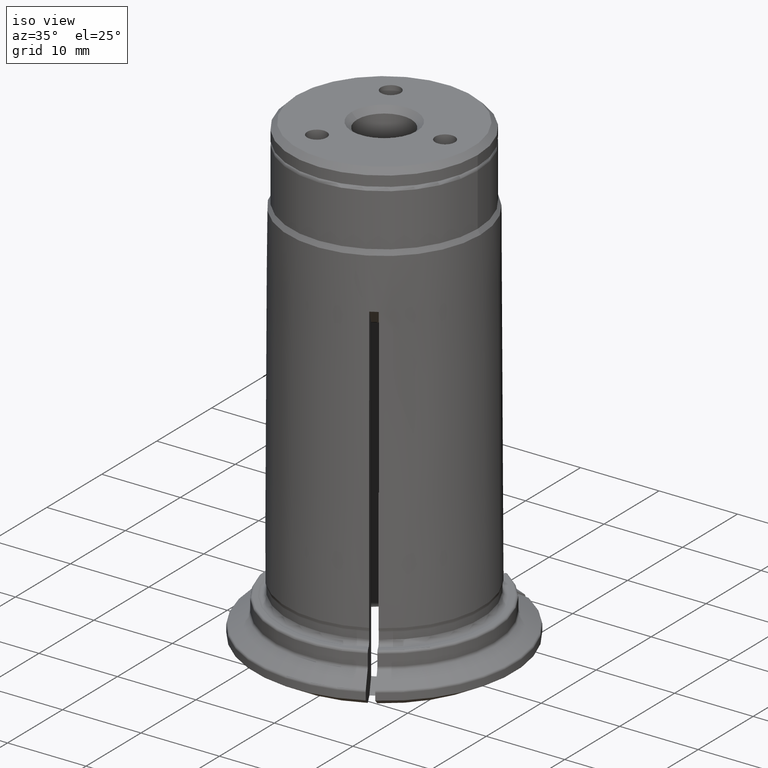
[diagram: clean part render]
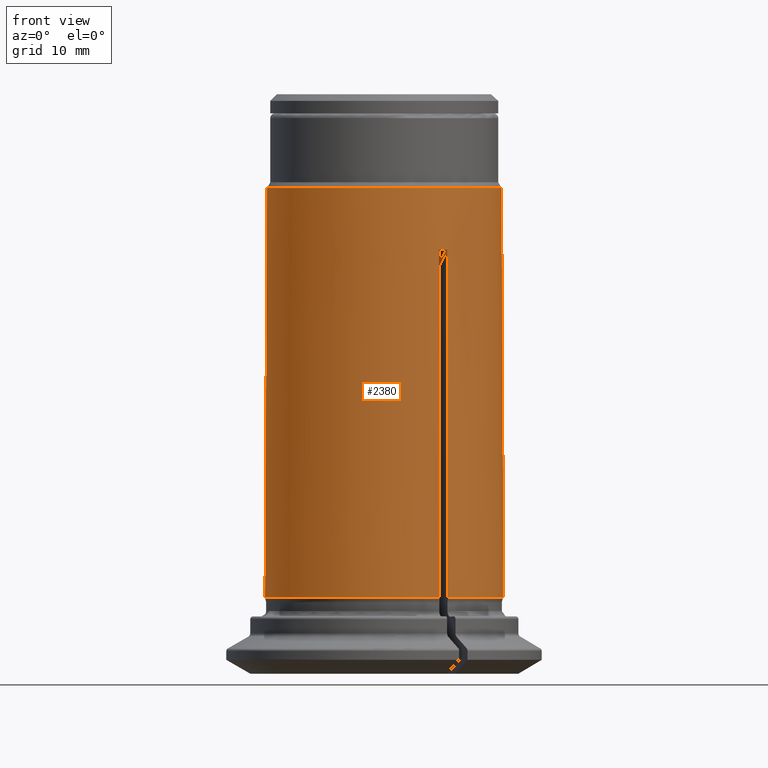
[diagram: tour spotlight — one face highlighted and labeled with its STEP entity id]
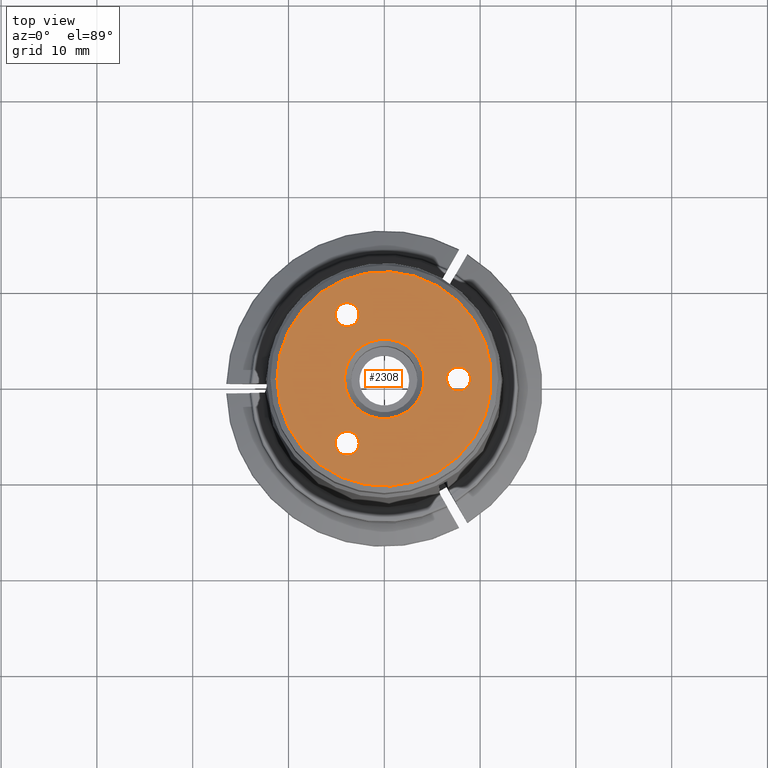
[diagram: tour spotlight — one face highlighted and labeled with its STEP entity id]
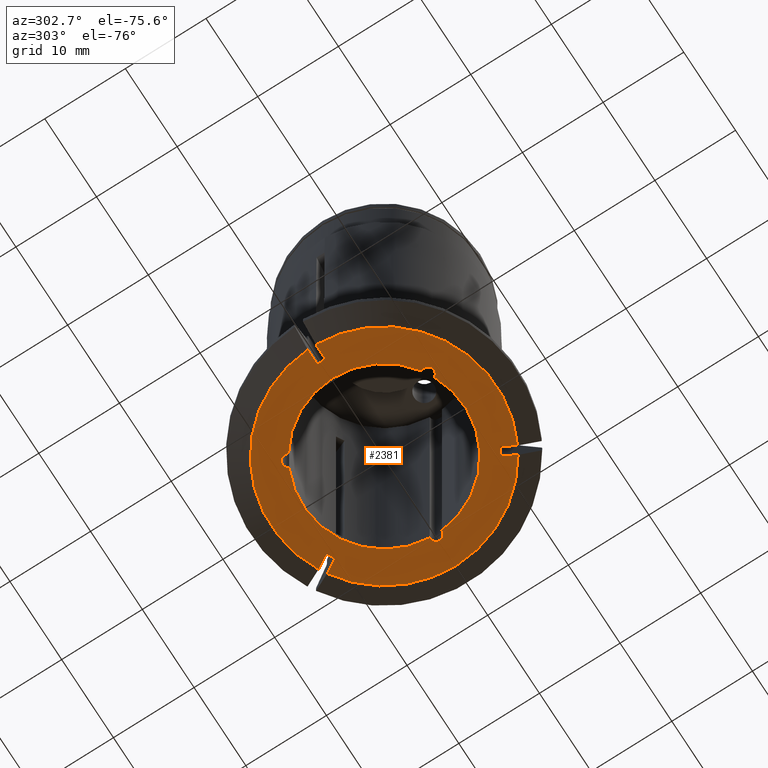
[diagram: tour spotlight — one face highlighted and labeled with its STEP entity id]
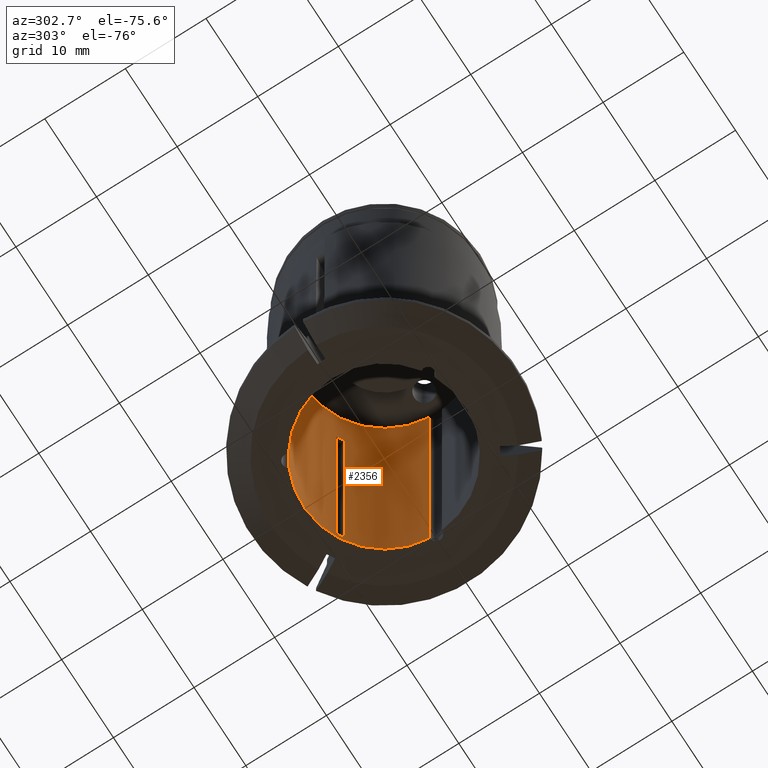
[diagram: tour spotlight — one face highlighted and labeled with its STEP entity id]
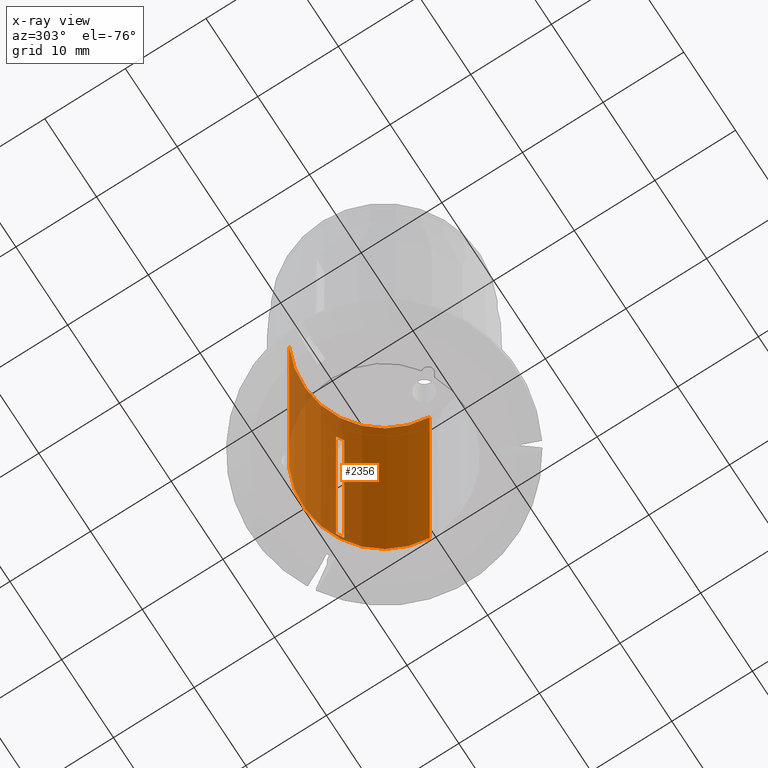
[diagram: x-ray of the same camera — body ghosted, this tour face saturated]
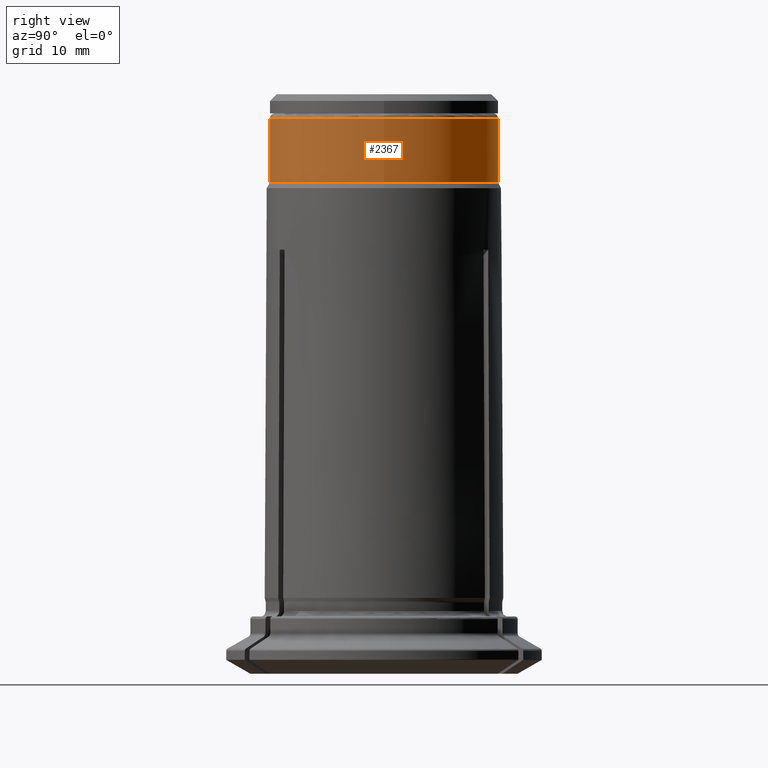
[diagram: tour spotlight — one face highlighted and labeled with its STEP entity id]
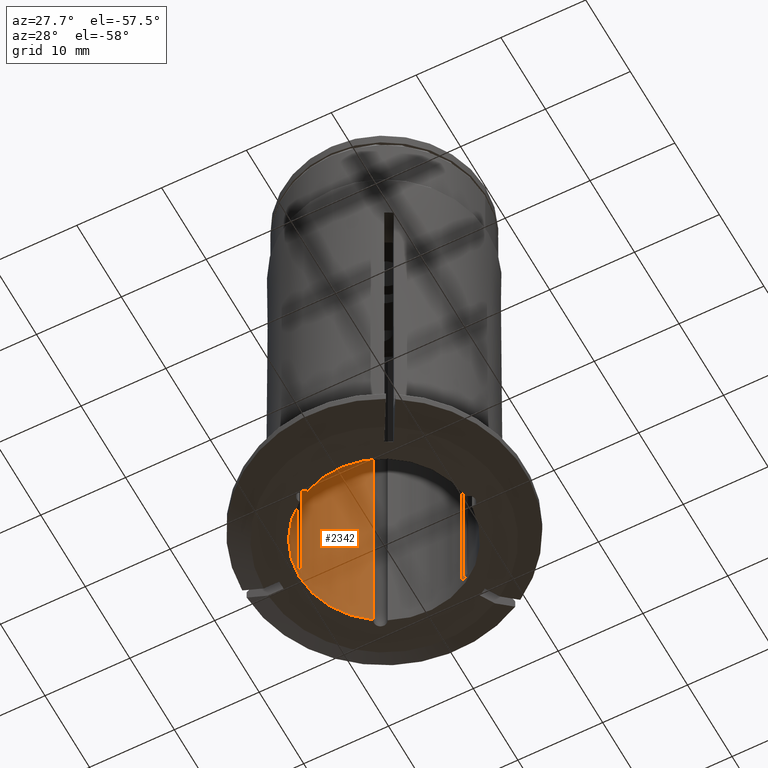
[diagram: tour spotlight — one face highlighted and labeled with its STEP entity id]
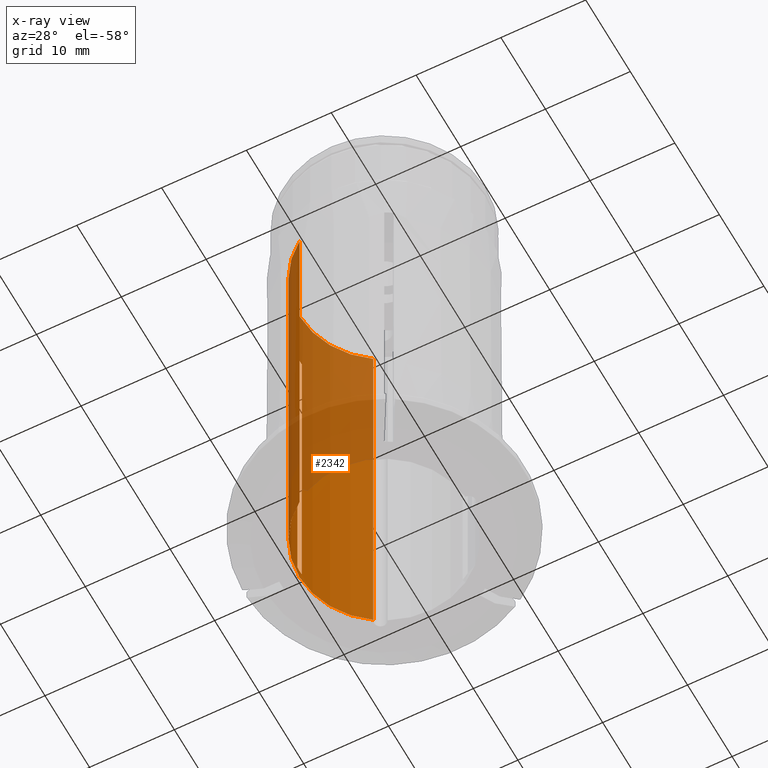
[diagram: x-ray of the same camera — body ghosted, this tour face saturated]
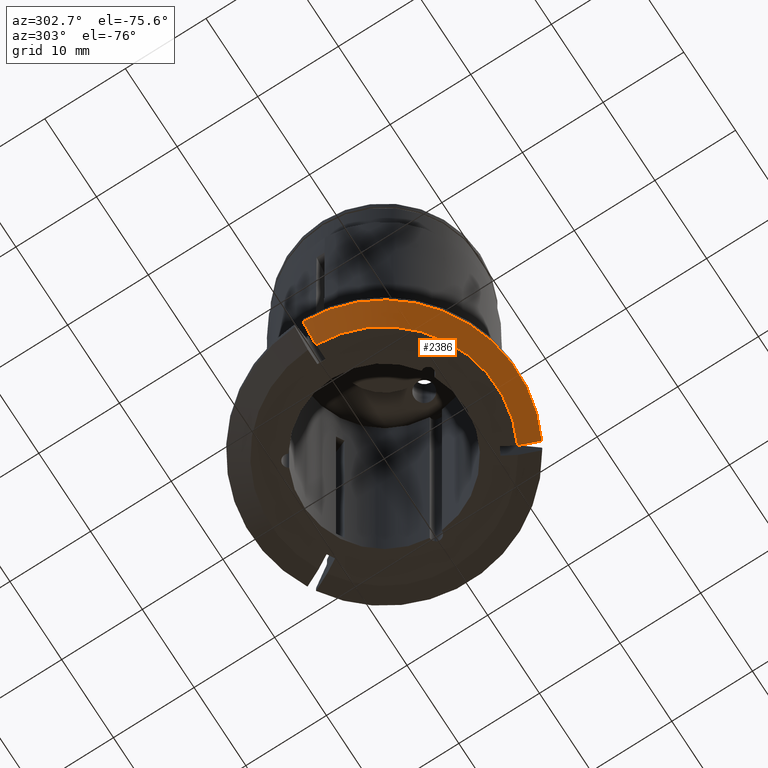
[diagram: tour spotlight — one face highlighted and labeled with its STEP entity id]
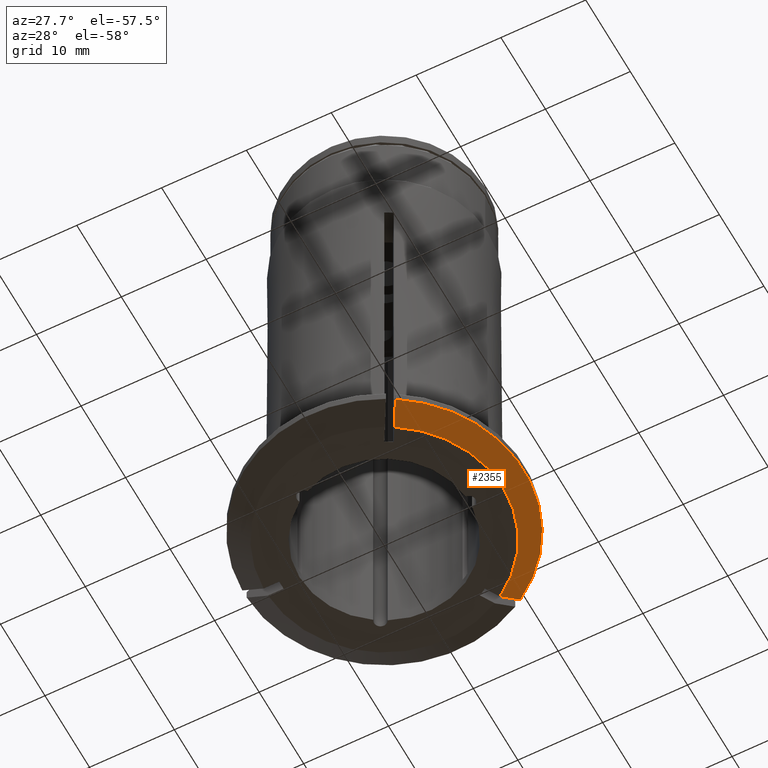
[diagram: tour spotlight — one face highlighted and labeled with its STEP entity id]
A machine part: a face-by-face anatomy tour. The part has 96 B-rep faces; the first image is the clean iso view, then the 8 largest visible faces are spotlighted one at a time (largest first), each with its STEP entity span.

Face 1 — front view, entity #2380. In plain terms, the highlighted conical surface has half-angle 0.287 deg.
Definition (entity closure, byte-faithful):
#21=ELLIPSE('',#2474,17.4532343795865,12.3411460909249);
#27=ELLIPSE('',#2590,17.4532343795865,12.3411460909249);
#28=ELLIPSE('',#2599,17.4532343795865,12.3411460909249);
#35=LINE('',#3316,#110);
#54=LINE('',#3426,#129);
#88=LINE('',#3727,#163);
#93=LINE('',#3763,#168);
#94=LINE('',#3767,#169);
#95=LINE('',#3770,#170);
#110=VECTOR('',#2767,1000.);
#129=VECTOR('',#2810,1000.);
#163=VECTOR('',#3060,1000.);
#168=VECTOR('',#3085,1000.);
#169=VECTOR('',#3088,1000.);
#170=VECTOR('',#3091,1000.);
#251=CONICAL_SURFACE('',#2597,12.4613719976876,0.00500036830696413);
#302=CIRCLE('',#2482,12.4613719976876);
#318=CIRCLE('',#2512,12.4613719976876);
#355=CIRCLE('',#2578,12.2474729635871);
#362=CIRCLE('',#2598,12.4613719976876);
#749=ORIENTED_EDGE('',*,*,#917,.F.);
#750=ORIENTED_EDGE('',*,*,#937,.T.);
#751=ORIENTED_EDGE('',*,*,#1082,.T.);
#752=ORIENTED_EDGE('',*,*,#1083,.T.);
#753=ORIENTED_EDGE('',*,*,#1084,.F.);
#754=ORIENTED_EDGE('',*,*,#1085,.T.);
#755=ORIENTED_EDGE('',*,*,#1069,.T.);
#756=ORIENTED_EDGE('',*,*,#980,.T.);
#757=ORIENTED_EDGE('',*,*,#1086,.F.);
#758=ORIENTED_EDGE('',*,*,#1074,.T.);
#759=ORIENTED_EDGE('',*,*,#955,.T.);
#760=ORIENTED_EDGE('',*,*,#960,.T.);
#761=ORIENTED_EDGE('',*,*,#1063,.F.);
#917=EDGE_CURVE('',#1150,#1151,#35,.T.);
#937=EDGE_CURVE('',#1150,#1169,#21,.T.);
#955=EDGE_CURVE('',#1187,#1186,#54,.T.);
#960=EDGE_CURVE('',#1186,#1151,#302,.T.);
#980=EDGE_CURVE('',#1197,#1196,#318,.T.);
#1063=EDGE_CURVE('',#1261,#1261,#355,.T.);
#1069=EDGE_CURVE('',#1263,#1197,#88,.T.);
#1074=EDGE_CURVE('',#1265,#1187,#27,.T.);
#1082=EDGE_CURVE('',#1169,#1268,#93,.T.);
#1083=EDGE_CURVE('',#1268,#1269,#362,.T.);
#1084=EDGE_CURVE('',#1270,#1269,#94,.T.);
#1085=EDGE_CURVE('',#1270,#1263,#28,.T.);
#1086=EDGE_CURVE('',#1265,#1196,#95,.T.);
#1150=VERTEX_POINT('',#3317);
#1151=VERTEX_POINT('',#3318);
#1169=VERTEX_POINT('',#3369);
#1186=VERTEX_POINT('',#3425);
#1187=VERTEX_POINT('',#3427);
#1196=VERTEX_POINT('',#3475);
#1197=VERTEX_POINT('',#3477);
#1261=VERTEX_POINT('',#3714);
#1263=VERTEX_POINT('',#3728);
#1265=VERTEX_POINT('',#3736);
#1268=VERTEX_POINT('',#3764);
#1269=VERTEX_POINT('',#3766);
#1270=VERTEX_POINT('',#3768);
#1448=EDGE_LOOP('',(#749,#750,#751,#752,#753,#754,#755,#756,#757,#758,#759,
#760));
#1449=EDGE_LOOP('',(#761));
#1586=FACE_BOUND('',#1448,.T.);
#1587=FACE_BOUND('',#1449,.T.);
#2380=ADVANCED_FACE('',(#1586,#1587),#251,.T.);
#2474=AXIS2_PLACEMENT_3D('',#3370,#2790,#2791);
#2482=AXIS2_PLACEMENT_3D('',#3435,#2818,#2819);
#2512=AXIS2_PLACEMENT_3D('',#3476,#2882,#2883);
#2578=AXIS2_PLACEMENT_3D('',#3713,#3038,#3039);
#2590=AXIS2_PLACEMENT_3D('',#3737,#3069,#3070);
#2597=AXIS2_PLACEMENT_3D('',#3762,#3083,#3084);
#2598=AXIS2_PLACEMENT_3D('',#3765,#3086,#3087);
#2599=AXIS2_PLACEMENT_3D('',#3769,#3089,#3090);
#2767=DIRECTION('',(-0.00500443706530629,0.,-0.999987477726426));
#2790=DIRECTION('',(0.707106781186548,-3.92523114670944E-16,0.707106781186548));
#2791=DIRECTION('',(0.707106781186548,-3.92523114670943E-16,-0.707106781186548));
#2810=DIRECTION('',(0.00250221853265369,0.00433396963019447,-0.999987477726426));
#2818=DIRECTION('',(0.,0.,1.));
#2819=DIRECTION('',(1.,0.,0.));
#2882=DIRECTION('',(0.,0.,1.));
#2883=DIRECTION('',(1.,0.,0.));
#3038=DIRECTION('',(0.,0.,1.));
#3039=DIRECTION('',(1.,0.,0.));
#3060=DIRECTION('',(0.00250221853265369,-0.00433396963019447,-0.999987477726426));
#3069=DIRECTION('',(-0.353553390593274,-0.612372435695795,0.707106781186547));
#3070=DIRECTION('',(-0.353553390593274,-0.612372435695795,-0.707106781186548));
#3083=DIRECTION('',(0.,0.,-1.));
#3084=DIRECTION('',(-1.,0.,0.));
#3085=DIRECTION('',(-0.00500443706530905,0.,-0.999987477726426));
#3086=DIRECTION('',(0.,0.,1.));
#3087=DIRECTION('',(1.,0.,0.));
#3088=DIRECTION('',(0.00250221853265369,-0.00433396963019447,-0.999987477726426));
#3089=DIRECTION('',(-0.353553390593274,0.612372435695795,0.707106781186548));
#3090=DIRECTION('',(-0.353553390593274,0.612372435695795,-0.707106781186548));
#3091=DIRECTION('',(0.00250221853265369,0.00433396963019447,-0.999987477726426));
#3316=CARTESIAN_POINT('',(-12.3603963876207,0.500000000000017,26.0976951692608));
#3317=CARTESIAN_POINT('',(-12.269455816314,0.500000000000016,44.269455816314));
#3318=CARTESIAN_POINT('',(-12.4513369589274,0.500000000000017,7.92593452220755));
#3369=CARTESIAN_POINT('',(-12.269455816314,-0.499999999999984,44.269455816314));
#3370=CARTESIAN_POINT('',(0.061711561643734,-3.42567983112237E-17,31.9382884383563));
#3425=CARTESIAN_POINT('',(5.79265577757151,11.0331741175112,7.92593452220755));
#3426=CARTESIAN_POINT('',(5.74718549191815,10.9544172725249,26.0976951692608));
#3427=CARTESIAN_POINT('',(5.70171520626479,10.8756604275387,44.269455816314));
#3435=CARTESIAN_POINT('',(0.,0.,7.92593452220755));
#3475=CARTESIAN_POINT('',(6.65868118135595,10.5331741175112,7.92593452220755));
#3476=CARTESIAN_POINT('',(0.,0.,7.92593452220755));
#3477=CARTESIAN_POINT('',(6.65868118135594,-10.5331741175112,7.92593452220755));
#3713=CARTESIAN_POINT('',(0.,0.,50.7022338290108));
#3714=CARTESIAN_POINT('',(12.2474729635871,0.,50.7022338290108));
#3727=CARTESIAN_POINT('',(6.61321089570258,-10.4544172725249,26.0976951692608));
#3728=CARTESIAN_POINT('',(6.56774061004921,-10.3756604275386,44.269455816314));
#3736=CARTESIAN_POINT('',(6.56774061004923,10.3756604275386,44.269455816314));
#3737=CARTESIAN_POINT('',(-0.0308557808218644,-0.0534437800906781,31.9382884383562));
#3762=CARTESIAN_POINT('',(0.,0.,7.92593452220755));
#3763=CARTESIAN_POINT('',(-12.3603963876208,-0.499999999999983,26.0976951692608));
#3764=CARTESIAN_POINT('',(-12.4513369589274,-0.499999999999983,7.92593452220755));
#3765=CARTESIAN_POINT('',(0.,0.,7.92593452220755));
#3766=CARTESIAN_POINT('',(5.7926557775715,-11.0331741175112,7.92593452220755));
#3767=CARTESIAN_POINT('',(5.74718549191814,-10.9544172725249,26.0976951692608));
#3768=CARTESIAN_POINT('',(5.70171520626478,-10.8756604275387,44.269455816314));
#3769=CARTESIAN_POINT('',(-0.030855780821867,0.0534437800906833,31.9382884383562));
#3770=CARTESIAN_POINT('',(6.61321089570259,10.4544172725249,26.0976951692608));

Face 2 — top view, entity #2308. In plain terms, the highlighted planar face has unit normal (0, 0, -1).
Definition (entity closure, byte-faithful):
#180=PLANE('',#2439);
#271=CIRCLE('',#2417,4.1585);
#275=CIRCLE('',#2423,1.25);
#277=CIRCLE('',#2426,1.25);
#279=CIRCLE('',#2429,1.25);
#281=CIRCLE('',#2433,11.2);
#416=ORIENTED_EDGE('',*,*,#897,.F.);
#417=ORIENTED_EDGE('',*,*,#895,.T.);
#418=ORIENTED_EDGE('',*,*,#893,.T.);
#419=ORIENTED_EDGE('',*,*,#891,.T.);
#420=ORIENTED_EDGE('',*,*,#887,.T.);
#887=EDGE_CURVE('',#1132,#1132,#271,.T.);
#891=EDGE_CURVE('',#1136,#1136,#275,.T.);
#893=EDGE_CURVE('',#1138,#1138,#277,.T.);
#895=EDGE_CURVE('',#1140,#1140,#279,.T.);
#897=EDGE_CURVE('',#1142,#1142,#281,.T.);
#1132=VERTEX_POINT('',#3242);
#1136=VERTEX_POINT('',#3252);
#1138=VERTEX_POINT('',#3257);
#1140=VERTEX_POINT('',#3262);
#1142=VERTEX_POINT('',#3268);
#1352=EDGE_LOOP('',(#416));
#1353=EDGE_LOOP('',(#417));
#1354=EDGE_LOOP('',(#418));
#1355=EDGE_LOOP('',(#419));
#1356=EDGE_LOOP('',(#420));
#1490=FACE_BOUND('',#1352,.T.);
#1491=FACE_BOUND('',#1353,.T.);
#1492=FACE_BOUND('',#1354,.T.);
#1493=FACE_BOUND('',#1355,.T.);
#1494=FACE_BOUND('',#1356,.T.);
#2308=ADVANCED_FACE('',(#1490,#1491,#1492,#1493,#1494),#180,.F.);
#2417=AXIS2_PLACEMENT_3D('',#3241,#2659,#2660);
#2423=AXIS2_PLACEMENT_3D('',#3251,#2671,#2672);
#2426=AXIS2_PLACEMENT_3D('',#3256,#2677,#2678);
#2429=AXIS2_PLACEMENT_3D('',#3261,#2683,#2684);
#2433=AXIS2_PLACEMENT_3D('',#3267,#2691,#2692);
#2439=AXIS2_PLACEMENT_3D('',#3276,#2703,#2704);
#2659=DIRECTION('',(0.,0.,-1.));
#2660=DIRECTION('',(-1.,0.,0.));
#2671=DIRECTION('',(0.,0.,-1.));
#2672=DIRECTION('',(1.,0.,0.));
#2677=DIRECTION('',(0.,0.,-1.));
#2678=DIRECTION('',(1.,0.,0.));
#2683=DIRECTION('',(0.,0.,-1.));
#2684=DIRECTION('',(1.,0.,0.));
#2691=DIRECTION('',(0.,0.,-1.));
#2692=DIRECTION('',(-1.,0.,0.));
#2703=DIRECTION('',(0.,0.,-1.));
#2704=DIRECTION('',(-1.,0.,0.));
#3241=CARTESIAN_POINT('',(0.,0.,60.5));
#3242=CARTESIAN_POINT('',(-4.1585,0.,60.5));
#3251=CARTESIAN_POINT('',(-3.875,-6.71169687932939,60.5));
#3252=CARTESIAN_POINT('',(-2.625,-6.71169687932939,60.5));
#3256=CARTESIAN_POINT('',(-3.875,6.7116968793294,60.5));
#3257=CARTESIAN_POINT('',(-2.625,6.7116968793294,60.5));
#3261=CARTESIAN_POINT('',(7.75,0.,60.5));
#3262=CARTESIAN_POINT('',(9.,0.,60.5));
#3267=CARTESIAN_POINT('',(0.,0.,60.5));
#3268=CARTESIAN_POINT('',(-11.2,0.,60.5));
#3276=CARTESIAN_POINT('',(11.9,0.,60.5));

Face 3 — auxiliary view, entity #2381. In plain terms, the highlighted planar face has unit normal (0, 0, -1).
Definition (entity closure, byte-faithful):
#41=LINE('',#3358,#116);
#46=LINE('',#3372,#121);
#48=LINE('',#3378,#123);
#87=LINE('',#3726,#162);
#90=LINE('',#3731,#165);
#96=LINE('',#3772,#171);
#97=LINE('',#3773,#172);
#98=LINE('',#3775,#173);
#99=LINE('',#3779,#174);
#116=VECTOR('',#2781,1000.);
#121=VECTOR('',#2794,1000.);
#123=VECTOR('',#2800,1000.);
#162=VECTOR('',#3059,1000.);
#165=VECTOR('',#3064,1000.);
#171=VECTOR('',#3094,1000.);
#172=VECTOR('',#3095,1000.);
#173=VECTOR('',#3096,1000.);
#174=VECTOR('',#3099,1000.);
#196=PLANE('',#2600);
#314=CIRCLE('',#2506,13.9770526580503);
#315=CIRCLE('',#2508,10.);
#334=CIRCLE('',#2540,13.9770526580503);
#335=CIRCLE('',#2544,10.);
#338=CIRCLE('',#2550,10.);
#356=CIRCLE('',#2582,0.75);
#357=CIRCLE('',#2584,0.75);
#358=CIRCLE('',#2586,0.75);
#363=CIRCLE('',#2601,13.9770526580503);
#762=ORIENTED_EDGE('',*,*,#938,.F.);
#763=ORIENTED_EDGE('',*,*,#931,.T.);
#764=ORIENTED_EDGE('',*,*,#972,.F.);
#765=ORIENTED_EDGE('',*,*,#941,.F.);
#766=ORIENTED_EDGE('',*,*,#1071,.F.);
#767=ORIENTED_EDGE('',*,*,#1087,.T.);
#768=ORIENTED_EDGE('',*,*,#1017,.F.);
#769=ORIENTED_EDGE('',*,*,#1068,.F.);
#770=ORIENTED_EDGE('',*,*,#1088,.F.);
#771=ORIENTED_EDGE('',*,*,#1089,.T.);
#772=ORIENTED_EDGE('',*,*,#1090,.F.);
#773=ORIENTED_EDGE('',*,*,#1091,.F.);
#774=ORIENTED_EDGE('',*,*,#975,.T.);
#775=ORIENTED_EDGE('',*,*,#1066,.T.);
#776=ORIENTED_EDGE('',*,*,#1032,.T.);
#777=ORIENTED_EDGE('',*,*,#1064,.T.);
#778=ORIENTED_EDGE('',*,*,#1022,.T.);
#779=ORIENTED_EDGE('',*,*,#1065,.T.);
#931=EDGE_CURVE('',#1165,#1164,#41,.T.);
#938=EDGE_CURVE('',#1165,#1170,#46,.T.);
#941=EDGE_CURVE('',#1172,#1173,#48,.T.);
#972=EDGE_CURVE('',#1173,#1164,#314,.T.);
#975=EDGE_CURVE('',#1192,#1191,#315,.T.);
#1017=EDGE_CURVE('',#1221,#1220,#334,.T.);
#1022=EDGE_CURVE('',#1226,#1225,#335,.T.);
#1032=EDGE_CURVE('',#1233,#1235,#338,.T.);
#1064=EDGE_CURVE('',#1235,#1226,#356,.T.);
#1065=EDGE_CURVE('',#1225,#1192,#357,.T.);
#1066=EDGE_CURVE('',#1191,#1233,#358,.T.);
#1068=EDGE_CURVE('',#1262,#1221,#87,.T.);
#1071=EDGE_CURVE('',#1264,#1172,#90,.T.);
#1087=EDGE_CURVE('',#1264,#1220,#96,.T.);
#1088=EDGE_CURVE('',#1271,#1262,#97,.T.);
#1089=EDGE_CURVE('',#1271,#1272,#98,.T.);
#1090=EDGE_CURVE('',#1273,#1272,#363,.T.);
#1091=EDGE_CURVE('',#1170,#1273,#99,.T.);
#1164=VERTEX_POINT('',#3357);
#1165=VERTEX_POINT('',#3359);
#1170=VERTEX_POINT('',#3373);
#1172=VERTEX_POINT('',#3379);
#1173=VERTEX_POINT('',#3380);
#1191=VERTEX_POINT('',#3464);
#1192=VERTEX_POINT('',#3466);
#1220=VERTEX_POINT('',#3585);
#1221=VERTEX_POINT('',#3587);
#1225=VERTEX_POINT('',#3597);
#1226=VERTEX_POINT('',#3599);
#1233=VERTEX_POINT('',#3614);
#1235=VERTEX_POINT('',#3618);
#1262=VERTEX_POINT('',#3725);
#1264=VERTEX_POINT('',#3732);
#1271=VERTEX_POINT('',#3774);
#1272=VERTEX_POINT('',#3776);
#1273=VERTEX_POINT('',#3778);
#1450=EDGE_LOOP('',(#762,#763,#764,#765,#766,#767,#768,#769,#770,#771,#772,
#773));
#1451=EDGE_LOOP('',(#774,#775,#776,#777,#778,#779));
#1588=FACE_BOUND('',#1450,.T.);
#1589=FACE_BOUND('',#1451,.T.);
#2381=ADVANCED_FACE('',(#1588,#1589),#196,.T.);
#2506=AXIS2_PLACEMENT_3D('',#3459,#2866,#2867);
#2508=AXIS2_PLACEMENT_3D('',#3465,#2872,#2873);
#2540=AXIS2_PLACEMENT_3D('',#3588,#2947,#2948);
#2544=AXIS2_PLACEMENT_3D('',#3598,#2957,#2958);
#2550=AXIS2_PLACEMENT_3D('',#3619,#2974,#2975);
#2582=AXIS2_PLACEMENT_3D('',#3718,#3046,#3047);
#2584=AXIS2_PLACEMENT_3D('',#3720,#3050,#3051);
#2586=AXIS2_PLACEMENT_3D('',#3722,#3054,#3055);
#2600=AXIS2_PLACEMENT_3D('',#3771,#3092,#3093);
#2601=AXIS2_PLACEMENT_3D('',#3777,#3097,#3098);
#2781=DIRECTION('',(-1.,5.55111512312578E-16,0.));
#2794=DIRECTION('',(-5.55111512312578E-16,-1.,0.));
#2800=DIRECTION('',(0.5,0.866025403784439,0.));
#2866=DIRECTION('',(0.,0.,1.));
#2867=DIRECTION('',(1.,0.,0.));
#2872=DIRECTION('',(0.,0.,1.));
#2873=DIRECTION('',(-1.,0.,0.));
#2947=DIRECTION('',(0.,0.,1.));
#2948=DIRECTION('',(1.,0.,0.));
#2957=DIRECTION('',(0.,0.,1.));
#2958=DIRECTION('',(-1.,0.,0.));
#2974=DIRECTION('',(0.,0.,1.));
#2975=DIRECTION('',(-1.,0.,0.));
#3046=DIRECTION('',(0.,0.,1.));
#3047=DIRECTION('',(0.,1.,0.));
#3050=DIRECTION('',(0.,0.,1.));
#3051=DIRECTION('',(-0.866025403784439,-0.5,0.));
#3054=DIRECTION('',(0.,0.,1.));
#3055=DIRECTION('',(0.866025403784438,-0.5,0.));
#3059=DIRECTION('',(0.5,-0.866025403784439,0.));
#3064=DIRECTION('',(-0.866025403784439,0.5,0.));
#3092=DIRECTION('',(0.,0.,-1.));
#3093=DIRECTION('',(-1.,0.,0.));
#3094=DIRECTION('',(0.5,0.866025403784439,0.));
#3095=DIRECTION('',(0.866025403784439,0.5,0.));
#3096=DIRECTION('',(0.5,-0.866025403784439,0.));
#3097=DIRECTION('',(0.,0.,1.));
#3098=DIRECTION('',(1.,0.,0.));
#3099=DIRECTION('',(-1.,5.55111512312578E-16,0.));
#3357=CARTESIAN_POINT('',(-13.9681065648108,0.500000000000018,-2.73567093223561E-18));
#3358=CARTESIAN_POINT('',(14.1502577388071,0.5,0.));
#3359=CARTESIAN_POINT('',(-12.1243556529821,0.500000000000017,-1.0842021724855E-15));
#3372=CARTESIAN_POINT('',(-12.1243556529821,1.45853403753445E-14,0.));
#3373=CARTESIAN_POINT('',(-12.1243556529821,-0.499999999999984,-1.0842021724855E-15));
#3378=CARTESIAN_POINT('',(3.10455173280958,6.37724133595217,0.));
#3379=CARTESIAN_POINT('',(5.62916512459888,10.75,-6.72205346941013E-15));
#3380=CARTESIAN_POINT('',(6.55104058051318,12.3467351278943,1.9360177971773E-15));
#3459=CARTESIAN_POINT('',(0.,0.,0.));
#3464=CARTESIAN_POINT('',(-5.63499969908516,-8.26116083800033,0.));
#3465=CARTESIAN_POINT('',(-3.03576608295941E-15,0.,0.));
#3466=CARTESIAN_POINT('',(-5.63499969908515,8.26116083800033,0.));
#3585=CARTESIAN_POINT('',(7.41706598429762,11.8467351278943,1.9360177971773E-15));
#3587=CARTESIAN_POINT('',(7.41706598429761,-11.8467351278943,-2.03650724240079E-16));
#3588=CARTESIAN_POINT('',(0.,0.,0.));
#3597=CARTESIAN_POINT('',(-4.33687530091485,9.01063330872557,0.));
#3598=CARTESIAN_POINT('',(-3.03576608295941E-15,0.,0.));
#3599=CARTESIAN_POINT('',(9.971875,0.749472470725243,0.));
#3614=CARTESIAN_POINT('',(-4.33687530091486,-9.01063330872557,0.));
#3618=CARTESIAN_POINT('',(9.971875,-0.749472470725243,0.));
#3619=CARTESIAN_POINT('',(-3.03576608295941E-15,0.,0.));
#3718=CARTESIAN_POINT('',(10.,0.,0.));
#3720=CARTESIAN_POINT('',(-5.,8.66025403784439,0.));
#3722=CARTESIAN_POINT('',(-5.,-8.66025403784438,0.));
#3725=CARTESIAN_POINT('',(6.49519052838329,-10.25,6.50521303491303E-16));
#3726=CARTESIAN_POINT('',(3.97057713659401,-5.87724133595217,0.));
#3731=CARTESIAN_POINT('',(16.6748711305965,4.37275866404783,0.));
#3732=CARTESIAN_POINT('',(6.49519052838331,10.25,-3.25260651745651E-15));
#3771=CARTESIAN_POINT('',(14.1502577388071,0.,0.));
#3772=CARTESIAN_POINT('',(3.97057713659402,5.87724133595217,0.));
#3773=CARTESIAN_POINT('',(16.6748711305965,-4.37275866404782,0.));
#3774=CARTESIAN_POINT('',(5.62916512459885,-10.75,6.50521303491303E-16));
#3775=CARTESIAN_POINT('',(3.10455173280957,-6.37724133595217,0.));
#3776=CARTESIAN_POINT('',(6.55104058051317,-12.3467351278943,5.20867276189869E-16));
#3777=CARTESIAN_POINT('',(0.,0.,0.));
#3778=CARTESIAN_POINT('',(-13.9681065648108,-0.499999999999983,0.));
#3779=CARTESIAN_POINT('',(14.1502577388071,-0.5,0.));

Face 4 — auxiliary view, entity #2356. An x-ray twin of the same camera follows (body ghosted, this face saturated) — the face is partly hidden behind the body. In plain terms, the highlighted cylindrical surface (partial cylindrical patch) has radius 10 mm, axis along (0, 0, -1).
Definition (entity closure, byte-faithful):
#23=ELLIPSE('',#2542,11.5470053837925,10.);
#24=ELLIPSE('',#2543,14.1421356237309,10.);
#56=LINE('',#3430,#131);
#71=LINE('',#3590,#146);
#72=LINE('',#3595,#147);
#73=LINE('',#3600,#148);
#131=VECTOR('',#2812,1000.);
#146=VECTOR('',#2951,1000.);
#147=VECTOR('',#2956,1000.);
#148=VECTOR('',#2959,1000.);
#227=CYLINDRICAL_SURFACE('',#2541,10.);
#335=CIRCLE('',#2544,10.);
#336=CIRCLE('',#2545,10.);
#630=ORIENTED_EDGE('',*,*,#1018,.F.);
#631=ORIENTED_EDGE('',*,*,#1019,.F.);
#632=ORIENTED_EDGE('',*,*,#957,.T.);
#633=ORIENTED_EDGE('',*,*,#1020,.F.);
#634=ORIENTED_EDGE('',*,*,#1021,.T.);
#635=ORIENTED_EDGE('',*,*,#1022,.F.);
#636=ORIENTED_EDGE('',*,*,#1023,.F.);
#637=ORIENTED_EDGE('',*,*,#1024,.T.);
#957=EDGE_CURVE('',#1189,#1188,#56,.T.);
#1018=EDGE_CURVE('',#1222,#1223,#71,.T.);
#1019=EDGE_CURVE('',#1189,#1222,#23,.T.);
#1020=EDGE_CURVE('',#1223,#1188,#24,.T.);
#1021=EDGE_CURVE('',#1224,#1225,#72,.T.);
#1022=EDGE_CURVE('',#1226,#1225,#335,.T.);
#1023=EDGE_CURVE('',#1227,#1226,#73,.T.);
#1024=EDGE_CURVE('',#1227,#1224,#336,.T.);
#1188=VERTEX_POINT('',#3429);
#1189=VERTEX_POINT('',#3431);
#1222=VERTEX_POINT('',#3591);
#1223=VERTEX_POINT('',#3592);
#1224=VERTEX_POINT('',#3596);
#1225=VERTEX_POINT('',#3597);
#1226=VERTEX_POINT('',#3599);
#1227=VERTEX_POINT('',#3601);
#1415=EDGE_LOOP('',(#630,#631,#632,#633));
#1416=EDGE_LOOP('',(#634,#635,#636,#637));
#1553=FACE_BOUND('',#1415,.T.);
#1554=FACE_BOUND('',#1416,.T.);
#2356=ADVANCED_FACE('',(#1553,#1554),#227,.F.);
#2541=AXIS2_PLACEMENT_3D('',#3589,#2949,#2950);
#2542=AXIS2_PLACEMENT_3D('',#3593,#2952,#2953);
#2543=AXIS2_PLACEMENT_3D('',#3594,#2954,#2955);
#2544=AXIS2_PLACEMENT_3D('',#3598,#2957,#2958);
#2545=AXIS2_PLACEMENT_3D('',#3602,#2960,#2961);
#2812=DIRECTION('',(0.,0.,1.));
#2949=DIRECTION('',(0.,0.,-1.));
#2950=DIRECTION('',(-1.,0.,0.));
#2951=DIRECTION('',(0.,0.,1.));
#2952=DIRECTION('',(-0.25,-0.433012701892219,-0.866025403784439));
#2953=DIRECTION('',(-0.433012701892219,-0.75,0.5));
#2954=DIRECTION('',(-0.353553390593274,-0.612372435695795,0.707106781186547));
#2955=DIRECTION('',(0.353553390593274,0.612372435695794,0.707106781186548));
#2956=DIRECTION('',(0.,0.,-1.));
#2957=DIRECTION('',(0.,0.,1.));
#2958=DIRECTION('',(-1.,0.,0.));
#2959=DIRECTION('',(0.,0.,-1.));
#2960=DIRECTION('',(0.,0.,1.));
#2961=DIRECTION('',(1.,0.,0.));
#3429=CARTESIAN_POINT('',(4.56073338696733,8.89942194600309,41.9874921777191));
#3430=CARTESIAN_POINT('',(4.56073338696734,8.89942194600309,0.));
#3431=CARTESIAN_POINT('',(4.56073338696734,8.89942194600309,1.2337187026646));
#3589=CARTESIAN_POINT('',(-3.03576608295941E-15,0.,0.));
#3590=CARTESIAN_POINT('',(5.42675879075177,8.39942194600309,0.));
#3591=CARTESIAN_POINT('',(5.42675879075177,8.39942194600309,1.2337187026646));
#3592=CARTESIAN_POINT('',(5.42675879075177,8.39942194600309,41.9874921777191));
#3593=CARTESIAN_POINT('',(-3.03576608295941E-15,0.,7.));
#3594=CARTESIAN_POINT('',(-3.03576608295941E-15,0.,32.));
#3595=CARTESIAN_POINT('',(-4.33687530091485,9.01063330872557,37.4174090497992));
#3596=CARTESIAN_POINT('',(-4.33687530091485,9.01063330872557,50.6689893600917));
#3597=CARTESIAN_POINT('',(-4.33687530091485,9.01063330872557,0.));
#3598=CARTESIAN_POINT('',(-3.03576608295941E-15,0.,0.));
#3599=CARTESIAN_POINT('',(9.971875,0.749472470725243,0.));
#3600=CARTESIAN_POINT('',(9.971875,0.749472470725243,37.4174090497992));
#3601=CARTESIAN_POINT('',(9.971875,0.749472470725243,50.6689893600917));
#3602=CARTESIAN_POINT('',(0.,0.,50.6689893600917));

Face 5 — right view, entity #2367. In plain terms, the highlighted cylindrical surface (bore or boss wall) has radius 11.9 mm, axis along (0, 0, -1).
Definition (entity closure, byte-faithful):
#232=CYLINDRICAL_SURFACE('',#2574,11.9);
#353=CIRCLE('',#2575,11.9);
#354=CIRCLE('',#2576,11.9);
#691=ORIENTED_EDGE('',*,*,#1061,.T.);
#692=ORIENTED_EDGE('',*,*,#1062,.F.);
#1061=EDGE_CURVE('',#1259,#1259,#353,.T.);
#1062=EDGE_CURVE('',#1260,#1260,#354,.T.);
#1259=VERTEX_POINT('',#3709);
#1260=VERTEX_POINT('',#3711);
#1431=EDGE_LOOP('',(#691));
#1432=EDGE_LOOP('',(#692));
#1569=FACE_BOUND('',#1431,.T.);
#1570=FACE_BOUND('',#1432,.T.);
#2367=ADVANCED_FACE('',(#1569,#1570),#232,.T.);
#2574=AXIS2_PLACEMENT_3D('',#3707,#3030,#3031);
#2575=AXIS2_PLACEMENT_3D('',#3708,#3032,#3033);
#2576=AXIS2_PLACEMENT_3D('',#3710,#3034,#3035);
#3030=DIRECTION('',(0.,0.,-1.));
#3031=DIRECTION('',(1.,0.,0.));
#3032=DIRECTION('',(0.,0.,1.));
#3033=DIRECTION('',(1.,0.,0.));
#3034=DIRECTION('',(0.,0.,1.));
#3035=DIRECTION('',(1.,0.,0.));
#3707=CARTESIAN_POINT('',(0.,0.,-1.7347234759768E-15));
#3708=CARTESIAN_POINT('',(0.,0.,51.3040746562003));
#3709=CARTESIAN_POINT('',(11.9,0.,51.3040746562003));
#3710=CARTESIAN_POINT('',(0.,0.,58.));
#3711=CARTESIAN_POINT('',(11.9,0.,58.));

Face 6 — auxiliary view, entity #2342. An x-ray twin of the same camera follows (body ghosted, this face saturated) — the face is partly hidden behind the body. In plain terms, the highlighted cylindrical surface (partial cylindrical patch) has radius 10 mm, axis along (0, 0, -1).
Definition (entity closure, byte-faithful):
#20=ELLIPSE('',#2473,14.1421356237309,10.);
#22=ELLIPSE('',#2476,11.5470053837925,10.);
#43=LINE('',#3362,#118);
#58=LINE('',#3461,#133);
#59=LINE('',#3462,#134);
#60=LINE('',#3467,#135);
#118=VECTOR('',#2783,1000.);
#133=VECTOR('',#2870,1000.);
#134=VECTOR('',#2871,1000.);
#135=VECTOR('',#2874,1000.);
#223=CYLINDRICAL_SURFACE('',#2507,10.);
#315=CIRCLE('',#2508,10.);
#316=CIRCLE('',#2509,10.);
#570=ORIENTED_EDGE('',*,*,#933,.F.);
#571=ORIENTED_EDGE('',*,*,#940,.F.);
#572=ORIENTED_EDGE('',*,*,#973,.T.);
#573=ORIENTED_EDGE('',*,*,#935,.F.);
#574=ORIENTED_EDGE('',*,*,#974,.T.);
#575=ORIENTED_EDGE('',*,*,#975,.F.);
#576=ORIENTED_EDGE('',*,*,#976,.F.);
#577=ORIENTED_EDGE('',*,*,#977,.T.);
#933=EDGE_CURVE('',#1166,#1167,#43,.T.);
#935=EDGE_CURVE('',#1167,#1168,#20,.T.);
#940=EDGE_CURVE('',#1171,#1166,#22,.T.);
#973=EDGE_CURVE('',#1171,#1168,#58,.T.);
#974=EDGE_CURVE('',#1190,#1191,#59,.T.);
#975=EDGE_CURVE('',#1192,#1191,#315,.T.);
#976=EDGE_CURVE('',#1193,#1192,#60,.T.);
#977=EDGE_CURVE('',#1193,#1190,#316,.T.);
#1166=VERTEX_POINT('',#3361);
#1167=VERTEX_POINT('',#3363);
#1168=VERTEX_POINT('',#3367);
#1171=VERTEX_POINT('',#3375);
#1190=VERTEX_POINT('',#3463);
#1191=VERTEX_POINT('',#3464);
#1192=VERTEX_POINT('',#3466);
#1193=VERTEX_POINT('',#3468);
#1400=EDGE_LOOP('',(#570,#571,#572,#573));
#1401=EDGE_LOOP('',(#574,#575,#576,#577));
#1538=FACE_BOUND('',#1400,.T.);
#1539=FACE_BOUND('',#1401,.T.);
#2342=ADVANCED_FACE('',(#1538,#1539),#223,.F.);
#2473=AXIS2_PLACEMENT_3D('',#3366,#2787,#2788);
#2476=AXIS2_PLACEMENT_3D('',#3376,#2796,#2797);
#2507=AXIS2_PLACEMENT_3D('',#3460,#2868,#2869);
#2508=AXIS2_PLACEMENT_3D('',#3465,#2872,#2873);
#2509=AXIS2_PLACEMENT_3D('',#3469,#2875,#2876);
#2783=DIRECTION('',(0.,0.,1.));
#2787=DIRECTION('',(0.707106781186548,-3.92523114670944E-16,0.707106781186548));
#2788=DIRECTION('',(-0.707106781186548,3.92523114670943E-16,0.707106781186548));
#2796=DIRECTION('',(0.5,-2.77555756156289E-16,-0.866025403784439));
#2797=DIRECTION('',(0.866025403784439,-4.80740671595891E-16,0.5));
#2868=DIRECTION('',(0.,0.,-1.));
#2869=DIRECTION('',(-1.,0.,0.));
#2870=DIRECTION('',(0.,0.,1.));
#2871=DIRECTION('',(0.,0.,-1.));
#2872=DIRECTION('',(0.,0.,1.));
#2873=DIRECTION('',(-1.,0.,0.));
#2874=DIRECTION('',(0.,0.,-1.));
#2875=DIRECTION('',(0.,0.,1.));
#2876=DIRECTION('',(1.,0.,0.));
#3361=CARTESIAN_POINT('',(-9.98749217771909,0.500000000000015,1.2337187026646));
#3362=CARTESIAN_POINT('',(-9.98749217771909,0.500000000000015,0.));
#3363=CARTESIAN_POINT('',(-9.98749217771909,0.500000000000015,41.9874921777191));
#3366=CARTESIAN_POINT('',(-3.03576608295941E-15,0.,32.));
#3367=CARTESIAN_POINT('',(-9.98749217771909,-0.499999999999985,41.9874921777191));
#3375=CARTESIAN_POINT('',(-9.98749217771909,-0.499999999999985,1.2337187026646));
#3376=CARTESIAN_POINT('',(-3.03576608295941E-15,0.,7.));
#3460=CARTESIAN_POINT('',(-3.03576608295941E-15,0.,0.));
#3461=CARTESIAN_POINT('',(-9.98749217771909,-0.499999999999985,0.));
#3462=CARTESIAN_POINT('',(-5.63499969908516,-8.26116083800033,37.4174090497992));
#3463=CARTESIAN_POINT('',(-5.63499969908515,-8.26116083800033,50.6689893600917));
#3464=CARTESIAN_POINT('',(-5.63499969908516,-8.26116083800033,0.));
#3465=CARTESIAN_POINT('',(-3.03576608295941E-15,0.,0.));
#3466=CARTESIAN_POINT('',(-5.63499969908515,8.26116083800033,0.));
#3467=CARTESIAN_POINT('',(-5.63499969908515,8.26116083800033,37.4174090497992));
#3468=CARTESIAN_POINT('',(-5.63499969908515,8.26116083800033,50.6689893600917));
#3469=CARTESIAN_POINT('',(0.,0.,50.6689893600917));

Face 7 — auxiliary view, entity #2386. In plain terms, the highlighted conical surface has half-angle 60 deg.
Definition (entity closure, byte-faithful):
#252=CONICAL_SURFACE('',#2607,13.9770526580503,1.0471975511966);
#363=CIRCLE('',#2601,13.9770526580503);
#364=CIRCLE('',#2606,36840.9304967691);
#365=CIRCLE('',#2608,16.4893079934595);
#366=CIRCLE('',#2609,36840.9359253963);
#810=ORIENTED_EDGE('',*,*,#1099,.T.);
#811=ORIENTED_EDGE('',*,*,#1100,.T.);
#812=ORIENTED_EDGE('',*,*,#1090,.T.);
#813=ORIENTED_EDGE('',*,*,#1098,.F.);
#1090=EDGE_CURVE('',#1273,#1272,#363,.T.);
#1098=EDGE_CURVE('',#1274,#1272,#364,.T.);
#1099=EDGE_CURVE('',#1274,#1275,#365,.T.);
#1100=EDGE_CURVE('',#1275,#1273,#366,.T.);
#1272=VERTEX_POINT('',#3776);
#1273=VERTEX_POINT('',#3778);
#1274=VERTEX_POINT('',#3801);
#1275=VERTEX_POINT('',#3805);
#1456=EDGE_LOOP('',(#810,#811,#812,#813));
#1594=FACE_BOUND('',#1456,.T.);
#2386=ADVANCED_FACE('',(#1594),#252,.T.);
#2601=AXIS2_PLACEMENT_3D('',#3777,#3097,#3098);
#2606=AXIS2_PLACEMENT_3D('',#3802,#3111,#3112);
#2607=AXIS2_PLACEMENT_3D('',#3803,#3113,#3114);
#2608=AXIS2_PLACEMENT_3D('',#3804,#3115,#3116);
#2609=AXIS2_PLACEMENT_3D('',#3806,#3117,#3118);
#3097=DIRECTION('',(0.,0.,1.));
#3098=DIRECTION('',(1.,0.,0.));
#3111=DIRECTION('',(0.866025403823272,0.499999999932739,-1.35301359889097E-10));
#3112=DIRECTION('',(0.249915314357144,-0.432866022368136,-0.866123168105414));
#3113=DIRECTION('',(0.,0.,1.));
#3114=DIRECTION('',(1.,0.,0.));
#3115=DIRECTION('',(0.,0.,-1.));
#3116=DIRECTION('',(-1.,0.,0.));
#3117=DIRECTION('',(-2.91214366271731E-16,-1.,1.68071818462125E-16));
#3118=DIRECTION('',(-0.499830628979196,-1.17717114970264E-20,-0.866123168108475));
#3776=CARTESIAN_POINT('',(6.55104058051317,-12.3467351278943,5.20867276189869E-16));
#3777=CARTESIAN_POINT('',(0.,0.,0.));
#3778=CARTESIAN_POINT('',(-13.9681065648108,-0.499999999999983,0.));
#3801=CARTESIAN_POINT('',(7.8078500882399,-14.5235930507132,1.45045129417178));
#3802=CARTESIAN_POINT('',(-9199.30487622149,15932.6634514267,31910.2338891072));
#3803=CARTESIAN_POINT('',(0.,0.,0.));
#3804=CARTESIAN_POINT('',(0.,0.,1.45045129417157));
#3805=CARTESIAN_POINT('',(-16.4817255802651,-0.499999999999981,1.45045129417157));
#3806=CARTESIAN_POINT('',(18397.7464501928,-0.499999999999981,31910.2385910797));

Face 8 — auxiliary view, entity #2355. In plain terms, the highlighted conical surface has half-angle 60 deg.
Definition (entity closure, byte-faithful):
#247=CONICAL_SURFACE('',#2537,13.9770526580503,1.0471975511966);
#331=CIRCLE('',#2536,16.4893079934595);
#332=CIRCLE('',#2538,36840.9304986386);
#333=CIRCLE('',#2539,36840.9357683372);
#334=CIRCLE('',#2540,13.9770526580503);
#626=ORIENTED_EDGE('',*,*,#1015,.F.);
#627=ORIENTED_EDGE('',*,*,#1012,.T.);
#628=ORIENTED_EDGE('',*,*,#1016,.T.);
#629=ORIENTED_EDGE('',*,*,#1017,.T.);
#1012=EDGE_CURVE('',#1218,#1219,#331,.T.);
#1015=EDGE_CURVE('',#1218,#1220,#332,.T.);
#1016=EDGE_CURVE('',#1219,#1221,#333,.T.);
#1017=EDGE_CURVE('',#1221,#1220,#334,.T.);
#1218=VERTEX_POINT('',#3573);
#1219=VERTEX_POINT('',#3574);
#1220=VERTEX_POINT('',#3585);
#1221=VERTEX_POINT('',#3587);
#1414=EDGE_LOOP('',(#626,#627,#628,#629));
#1552=FACE_BOUND('',#1414,.T.);
#2355=ADVANCED_FACE('',(#1552),#247,.T.);
#2536=AXIS2_PLACEMENT_3D('',#3572,#2939,#2940);
#2537=AXIS2_PLACEMENT_3D('',#3583,#2941,#2942);
#2538=AXIS2_PLACEMENT_3D('',#3584,#2943,#2944);
#2539=AXIS2_PLACEMENT_3D('',#3586,#2945,#2946);
#2540=AXIS2_PLACEMENT_3D('',#3588,#2947,#2948);
#2939=DIRECTION('',(0.,0.,-1.));
#2940=DIRECTION('',(-1.,0.,0.));
#2941=DIRECTION('',(0.,0.,1.));
#2942=DIRECTION('',(1.,0.,0.));
#2943=DIRECTION('',(-0.866025403777148,0.500000000012627,-2.53690049778959E-11));
#2944=DIRECTION('',(0.249915314517589,0.432866022275499,-0.866123168105415));
#2945=DIRECTION('',(0.866025403791102,0.499999999988459,-2.25502266491067E-11));
#2946=DIRECTION('',(0.24991531446699,-0.432866022298764,-0.866123168108388));
#2947=DIRECTION('',(0.,0.,1.));
#2948=DIRECTION('',(1.,0.,0.));
#3572=CARTESIAN_POINT('',(0.,0.,1.45045129417157));
#3573=CARTESIAN_POINT('',(8.67387549202514,14.0235930507138,1.45045129417355));
#3574=CARTESIAN_POINT('',(8.67387549202479,-14.0235930507134,1.45045129417158));
#3583=CARTESIAN_POINT('',(0.,0.,0.));
#3584=CARTESIAN_POINT('',(-9198.4388571959,-15933.1634488231,31910.2338907265));
#3585=CARTESIAN_POINT('',(7.41706598429762,11.8467351278943,1.9360177971773E-15));
#3586=CARTESIAN_POINT('',(-9198.44017231015,15933.1657307537,31910.238455044));
#3587=CARTESIAN_POINT('',(7.41706598429761,-11.8467351278943,-2.03650724240079E-16));
#3588=CARTESIAN_POINT('',(0.,0.,0.));